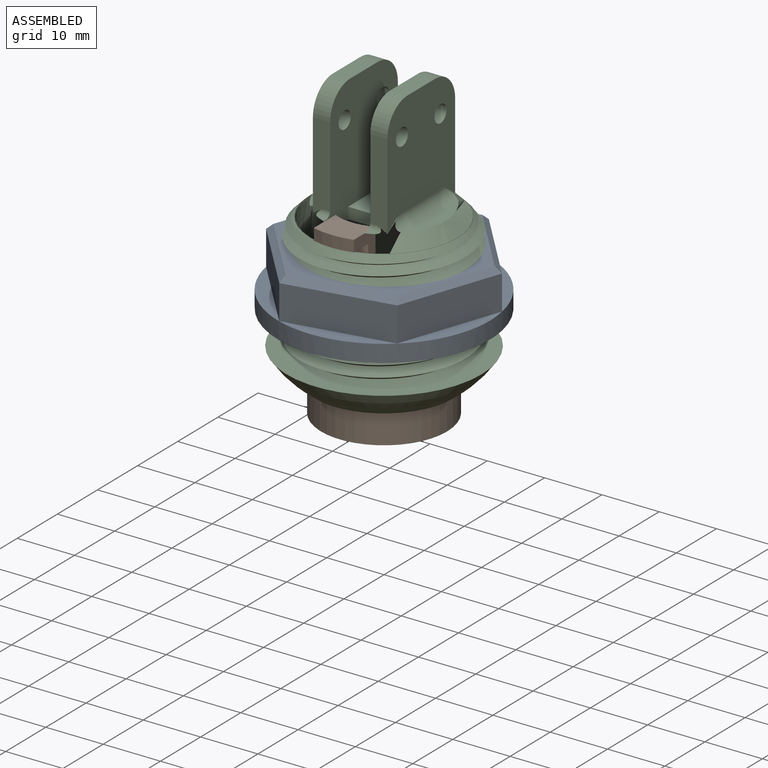
[diagram: assembled view]
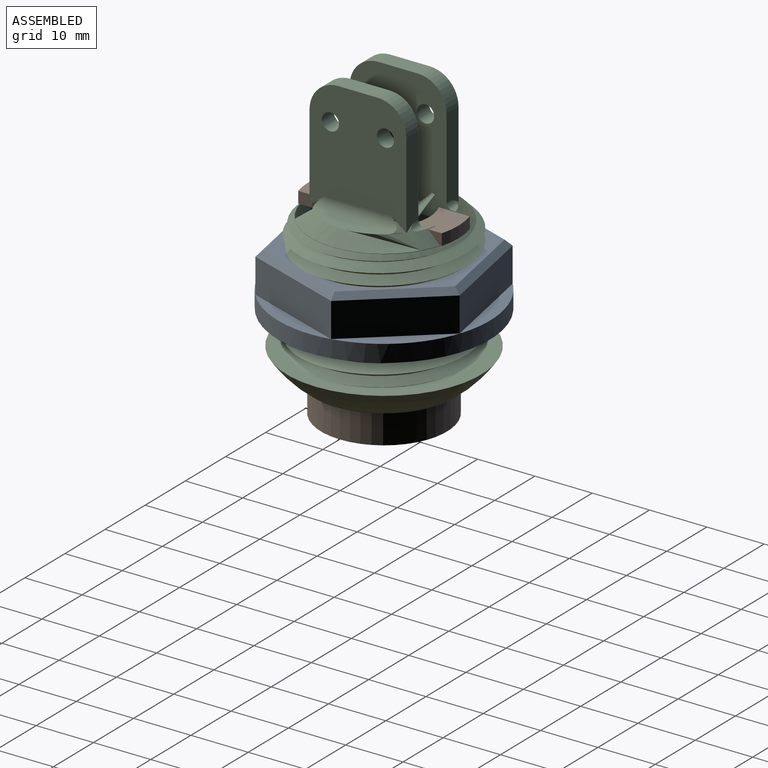
[diagram: assembled view, second angle]
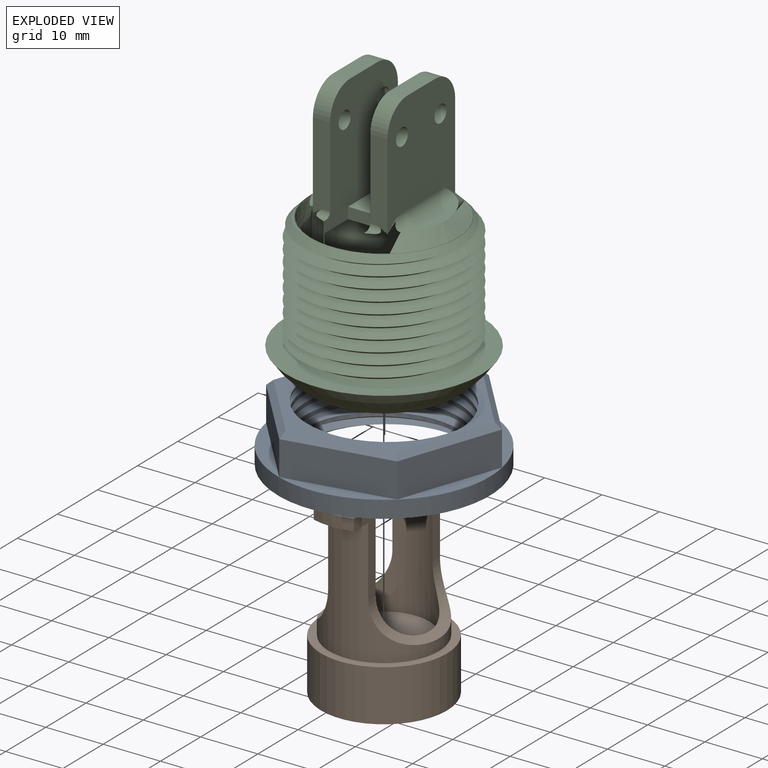
[diagram: exploded view]
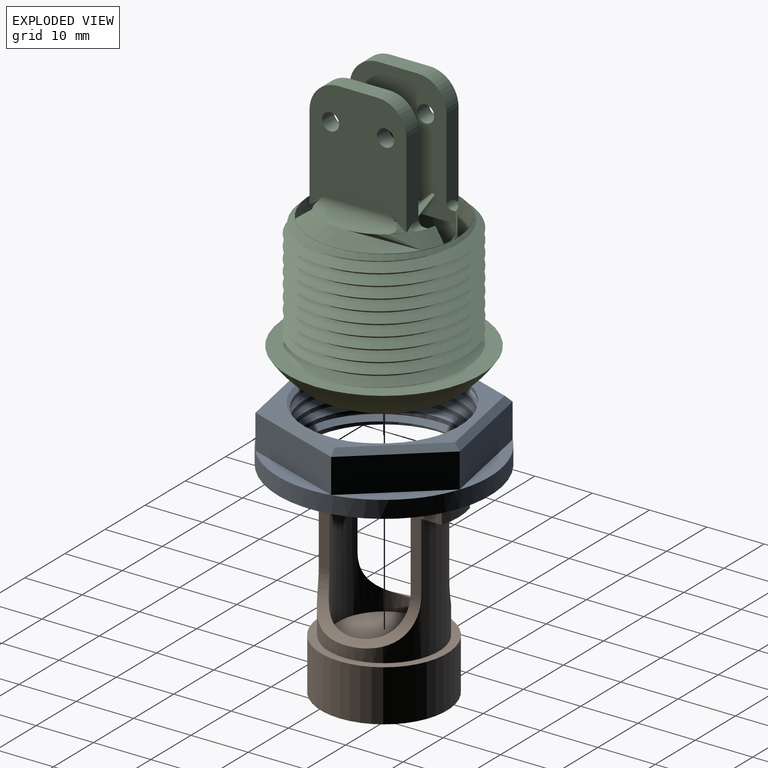
[diagram: exploded view, second angle]
ASSEMBLY  parts=3 mates=2
PART A: 19 faces, bbox 12.4x37.7x37.7 mm
  f0: plane 16.02x9.21mm, normal (0,0.5,0.87), area 110.9mm2, adj f1,f5,f13,f17
  f1: plane 15.98x9.27mm, normal (0,-0.5,0.87), area 110.9mm2, adj f0,f2,f14,f17
  f2: plane 18.48x6mm, normal (0,-1,0), area 110.9mm2, adj f1,f3,f12,f17
  f3: plane 16.02x9.21mm, normal (0,-0.5,-0.87), area 110.9mm2, adj f2,f4,f10,f17
  f4: plane 15.98x9.27mm, normal (0,0.5,-0.87), area 110.9mm2, adj f3,f5,f9,f17
  f5: plane 18.48x6mm, normal (0,1,0), area 110.9mm2, adj f0,f4,f11,f17
  f6: cylinder r=13.48mm len=26.96mm, axis (1,0,0), area 298mm2, adj f7,f8,f15,f16
  f7: plane 35.35x30.75mm, normal (-1,0,0), area 177mm2, adj f6,f9,f10,f11,f12,f13,f14,f15
  f8: plane 37.71x37.71mm, normal (1,0,0), area 472.8mm2, adj f6,f15,f16,f18
  f9: plane 15.98x9.84mm, normal (-0.71,0.35,-0.61), area 25.3mm2, adj f4,f7,f10,f11
  f10: plane 16.02x9.79mm, normal (-0.71,-0.35,-0.61), area 25.3mm2, adj f3,f7,f9,f12
  f11: plane 18.48x1.04mm, normal (-0.71,0.71,0), area 25.3mm2, adj f5,f7,f9,f13
  f12: plane 18.48x1.04mm, normal (-0.71,-0.71,0), area 25.3mm2, adj f2,f7,f10,f14
  f13: plane 16.02x9.79mm, normal (-0.71,0.35,0.61), area 25.3mm2, adj f0,f7,f11,f14
  f14: plane 15.98x9.84mm, normal (-0.71,-0.35,0.61), area 25.3mm2, adj f1,f7,f12,f13
  f15: bspline ~33.72x29.21mm, area 572.9mm2, adj f6,f7,f8,f16
  f16: bspline ~33.72x29.21mm, area 572.6mm2, adj f6,f7,f8,f15
  f17: plane 37x37mm, normal (-1,0,0), area 188.4mm2, adj f0,f1,f2,f3,f4,f5,f18
  f18: cylinder r=18.5mm len=37mm, axis (1,0,0), area 348.7mm2, adj f8,f17
PART B: 19 faces, bbox 22x26x33 mm
  f0: cylinder r=7.9mm len=24mm, axis (0,0,-1), area 487.7mm2, adj f1,f2,f11,f13,f14,f15,f16,f17
  f1: plane 7x5.92mm, normal (0,0,1), area 36.5mm2, adj f0,f3,f13,f16
  f2: plane 7x5.92mm, normal (0,0,1), area 36.5mm2, adj f0,f4,f15,f18
  f3: cylinder r=13mm len=7mm, axis (0,0,-1), area 14.2mm2, adj f1,f6,f13,f16
  f4: cylinder r=13mm len=7mm, axis (0,0,-1), area 14.2mm2, adj f2,f5,f15,f18
  f5: plane 7x4.06mm, normal (0,0,-1), area 24.2mm2, adj f4,f7,f15,f18
  f6: plane 7x4.06mm, normal (0,0,-1), area 24.2mm2, adj f3,f7,f13,f16
  f7: cylinder r=9.6mm len=22mm, axis (0,0,-1), area 467.6mm2, adj f5,f6,f12,f13,f14,f15,f16,f17
  f8: cylinder r=11mm len=22mm, axis (0,0,-1), area 622mm2, adj f9,f12
  f9: plane 22x22mm, normal (0,0,-1), area 33.8mm2, adj f8,f10
  f10: sphere r=19.88mm, area 374.6mm2, adj f9
  f11: plane 15.8x15.8mm, normal (0,0,1), area 196.1mm2, adj f0
  f12: plane 22x22mm, normal (0,0,1), area 90.6mm2, adj f7,f8
  f13: plane 14.23x5.44mm, normal (-1,0,0), area 33.6mm2, adj f0,f1,f3,f6,f7,f14
  f14: cylinder r=8mm len=17.88mm, axis (0,-1,0), area 53.5mm2, adj f0,f7,f13,f15
  f15: plane 14.23x5.44mm, normal (-1,0,0), area 33.6mm2, adj f0,f2,f4,f5,f7,f14
  f16: plane 14.23x5.44mm, normal (1,0,0), area 33.6mm2, adj f0,f1,f3,f6,f7,f17
  f17: cylinder r=8mm len=17.88mm, axis (0,-1,0), area 53.5mm2, adj f0,f7,f16,f18
  f18: plane 14.23x5.44mm, normal (1,0,0), area 33.6mm2, adj f0,f2,f4,f5,f7,f17
PART C: 50 faces, bbox 35.5x35.5x49 mm
  f0: cylinder r=11.5mm len=23mm, axis (0,0,-1), area 614.2mm2, adj f12,f45
  f1: sphere r=20.52mm, area 644.8mm2, adj f13,f45
  f2: plane 1.44x0.62mm, normal (0,0,1), area 0.5mm2, adj f14,f19,f42
  f3: plane 12.85x2.16mm, normal (0,0,1), area 18.9mm2, adj f14,f39
  f4: plane 8x7mm, normal (0,0,1), area 56mm2, adj f15,f18,f19,f21
  f5: plane 1.44x0.62mm, normal (0,0,1), area 0.5mm2, adj f14,f19,f41
  f6: plane 1.44x0.62mm, normal (0,0,1), area 0.5mm2, adj f14,f21,f44
  f7: plane 12.85x2.16mm, normal (0,0,1), area 18.9mm2, adj f14,f40
  f8: cylinder r=10.5mm len=21mm, axis (0,0,-1), area 1093mm2, adj f9,f12,f17,f19,f21,f22
  f9: plane 21x19.8mm, normal (0,0,-1), area 258.1mm2, adj f8,f15,f18,f19,f21
  f10: plane 1.44x0.62mm, normal (0,0,1), area 0.5mm2, adj f14,f21,f43
  f11: cylinder r=12.75mm len=25.5mm, axis (0,0,-1), area 1634.7mm2, adj f13,f14
  f12: plane 23x23mm, normal (0,0,-1), area 69.1mm2, adj f0,f8
  f13: plane 35.46x35.46mm, normal (0,0,1), area 325.3mm2, adj f1,f11,f46,f47,f48
  f14: cone r=4.56mm half-angle=45deg, axis (0,0,-1), area 225.3mm2, adj f2,f3,f5,f6,f7,f10,f11,f16
  f15: plane 7x2mm, normal (0,-1,0), area 14mm2, adj f4,f9,f19,f21
  f16: cylinder r=10.66mm len=7mm, axis (0,0,1), area 28.5mm2, adj f14,f17,f19,f21
  f17: plane 7x0.76mm, normal (0,0,1), area 1.1mm2, adj f8,f16,f19,f21
  f18: plane 7x2mm, normal (0,1,0), area 14mm2, adj f4,f9,f19,f21
  f19: plane 24x20.13mm, normal (-1,0,0), area 338.2mm2, adj f2,f4,f5,f8,f9,f15,f16,f17
  f20: cylinder r=10.66mm len=7mm, axis (0,0,1), area 28.5mm2, adj f14,f19,f21,f22
  f21: plane 24x20.13mm, normal (1,0,0), area 338.2mm2, adj f4,f6,f8,f9,f10,f15,f16,f17
  f22: plane 7x0.76mm, normal (0,0,1), area 1.1mm2, adj f8,f19,f20,f21
  f23: plane 15.11x3.11mm, normal (0,1,0), area 42.9mm2, adj f14,f21,f24,f37,f43
  f24: plane 20.24x17.13mm, normal (-1,0,0), area 284.4mm2, adj f14,f23,f25,f26,f33,f34,f37,f38
  f25: plane 15.11x3.11mm, normal (0,-1,0), area 42.9mm2, adj f14,f21,f24,f38,f44
  f26: plane 6.89x3mm, normal (0,0,1), area 20.7mm2, adj f21,f24,f37,f38
  f27: plane 15.11x3.11mm, normal (0,-1,0), area 42.9mm2, adj f14,f19,f28,f35,f41
  f28: plane 20.24x17.13mm, normal (1,0,0), area 284.4mm2, adj f14,f27,f29,f30,f31,f32,f35,f36
  f29: plane 15.11x3.11mm, normal (0,1,0), area 42.9mm2, adj f14,f19,f28,f36,f42
  f30: plane 6.89x3mm, normal (0,0,1), area 20.7mm2, adj f19,f28,f35,f36
  f31: cylinder r=1.5mm len=3mm, axis (-1,0,0), area 28.3mm2, adj f19,f28
  f32: cylinder r=1.5mm len=3mm, axis (-1,0,0), area 28.3mm2, adj f19,f28
  f33: cylinder r=1.5mm len=3mm, axis (-1,0,0), area 28.3mm2, adj f21,f24
  f34: cylinder r=1.5mm len=3mm, axis (-1,0,0), area 28.3mm2, adj f21,f24
  f35: cylinder r=5mm len=5mm, axis (-1,0,0), area 23.6mm2, adj f19,f27,f28,f30
  f36: cylinder r=5mm len=5mm, axis (1,0,0), area 23.6mm2, adj f19,f28,f29,f30
  f37: cylinder r=5mm len=5mm, axis (1,0,0), area 23.6mm2, adj f21,f23,f24,f26
  f38: cylinder r=5mm len=5mm, axis (-1,0,0), area 23.6mm2, adj f21,f24,f25,f26
  f39: cylinder r=2mm len=12.85mm, axis (0,1,0), area 38.1mm2, adj f3,f14,f28
  f40: cylinder r=2mm len=12.85mm, axis (0,-1,0), area 38.1mm2, adj f7,f14,f24
  f41: cylinder r=1mm len=2.08mm, axis (1,0,0), area 2.9mm2, adj f5,f14,f19,f27
  f42: cylinder r=1mm len=2.08mm, axis (-1,0,0), area 2.9mm2, adj f2,f14,f19,f29
  f43: cylinder r=1mm len=2.08mm, axis (-1,0,0), area 2.9mm2, adj f10,f14,f21,f23
  f44: cylinder r=1mm len=2.08mm, axis (1,0,0), area 2.9mm2, adj f6,f14,f21,f25
  f45: plane 24.41x24.41mm, normal (0,0,-1), area 52.6mm2, adj f0,f1
  f46: bspline ~33.49x29mm, area 1662.6mm2, adj f13,f47,f48,f49
  f47: cylinder r=12.78mm len=25.55mm, axis (0,0,-1), area 1609mm2, adj f13,f46,f48,f49
  f48: bspline ~33.49x29mm, area 1662.8mm2, adj f13,f46,f47,f49
  f49: cone r=4.56mm half-angle=45deg, axis (0,0,-1), area 101.9mm2, adj f46,f47,f48
PLACE A rot(axis=(-0.67,0.31,0.67),145.9deg) t=(-5.89,5.57,-6.64)mm
PLACE B t=(-5.89,5.57,-14.14)mm
PLACE C t=(-5.89,5.57,-12.54)mm fixed
MATE slider B.f0 <-> C.f0  axis (0,0,-1) through (-5.89,5.57,-14.14)mm
MATE cylindrical A.f18 <-> C.f0  axis (0,0,-1) through (-5.89,5.57,-5.14)mm
